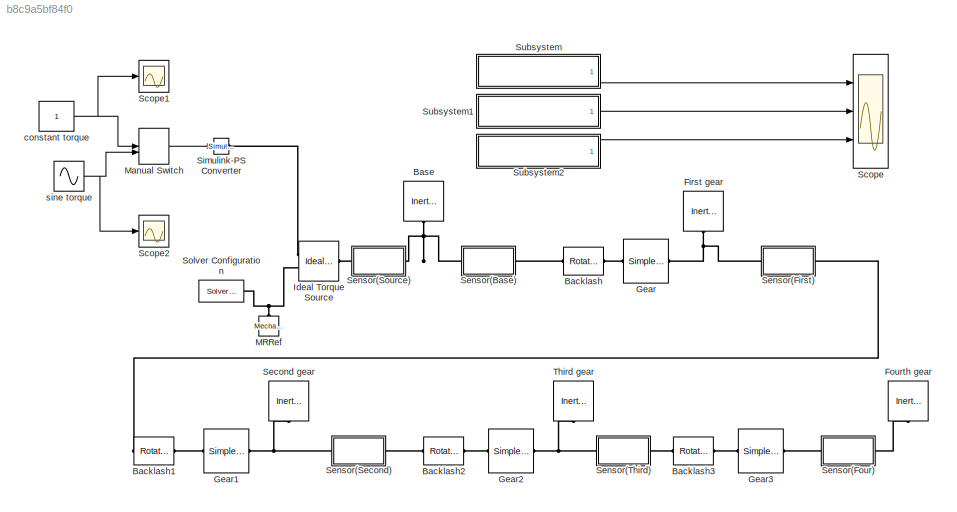
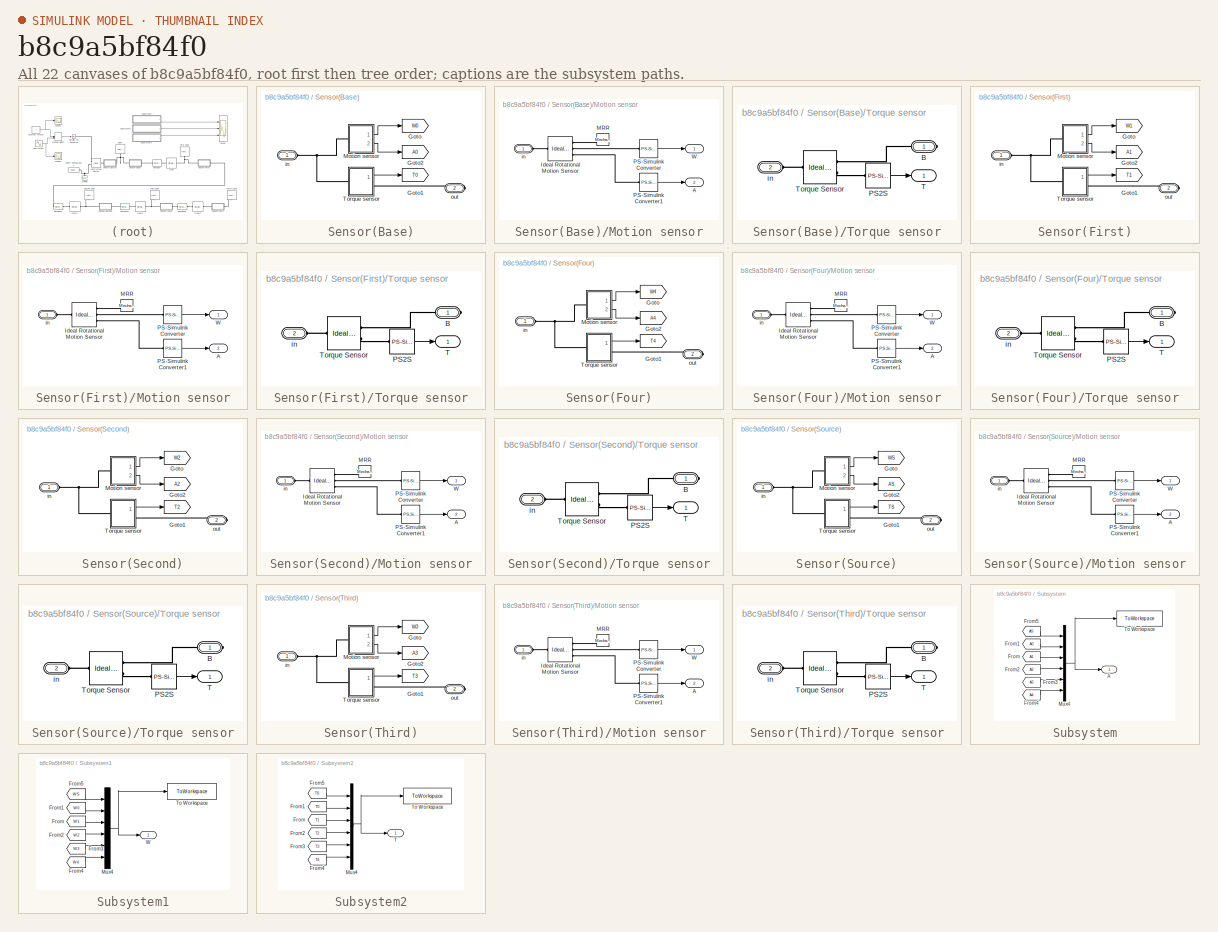
[diagram: thumbnail index - all 22 canvases of the model, root first then tree order]
MODEL slx_b8c9a5bf84f0
KIND model
CONFIG AbsTol = auto
CONFIG EnableMultiTasking = on
CONFIG FixedStep = auto
CONFIG MaxStep = 0.001
CONFIG MinStep = auto
CONFIG RelTol = 1e-3
CONFIG SampleTimeConstraint = Unconstrained
CONFIG Solver = ode15s
CONFIG SolverName = ode15s
CONFIG StartTime = 0.0
CONFIG StopFcn = GA_plot
CONFIG StopTime = 1
BLOCK [Reference] Backlash  REF=fl_lib/Mechanical/Rotational Elements/Rotational Hard Stop
  Ports = [0, 0, 0, 0, 0, 1, 1]
  SourceBlock = fl_lib/Mechanical/Rotational Elements/Rotational Hard Stop
  SourceProductBaseCode = SS
  SourceProductName = Simscape
  SourceType = Rotational Hard Stop
BLOCK [Reference] Backlash1  REF=fl_lib/Mechanical/Rotational Elements/Rotational Hard Stop
  Ports = [0, 0, 0, 0, 0, 1, 1]
  SourceBlock = fl_lib/Mechanical/Rotational Elements/Rotational Hard Stop
  SourceProductBaseCode = SS
  SourceProductName = Simscape
  SourceType = Rotational Hard Stop
BLOCK [Reference] Backlash2  REF=fl_lib/Mechanical/Rotational Elements/Rotational Hard Stop
  Ports = [0, 0, 0, 0, 0, 1, 1]
  SourceBlock = fl_lib/Mechanical/Rotational Elements/Rotational Hard Stop
  SourceProductBaseCode = SS
  SourceProductName = Simscape
  SourceType = Rotational Hard Stop
BLOCK [Reference] Backlash3  REF=fl_lib/Mechanical/Rotational Elements/Rotational Hard Stop
  Ports = [0, 0, 0, 0, 0, 1, 1]
  SourceBlock = fl_lib/Mechanical/Rotational Elements/Rotational Hard Stop
  SourceProductBaseCode = SS
  SourceProductName = Simscape
  SourceType = Rotational Hard Stop
BLOCK [Reference] Base  REF=fl_lib/Mechanical/Rotational Elements/Inertia
  Ports = [0, 0, 0, 0, 0, 1]
  SourceBlock = fl_lib/Mechanical/Rotational Elements/Inertia
  SourceProductBaseCode = SS
  SourceProductName = Simscape
  SourceType = Inertia
BLOCK [Reference] First gear  REF=fl_lib/Mechanical/Rotational Elements/Inertia
  Ports = [0, 0, 0, 0, 0, 1]
  SourceBlock = fl_lib/Mechanical/Rotational Elements/Inertia
  SourceProductBaseCode = SS
  SourceProductName = Simscape
  SourceType = Inertia
BLOCK [Reference] Fourth gear  REF=fl_lib/Mechanical/Rotational Elements/Inertia
  Ports = [0, 0, 0, 0, 0, 1]
  SourceBlock = fl_lib/Mechanical/Rotational Elements/Inertia
  SourceProductBaseCode = SS
  SourceProductName = Simscape
  SourceType = Inertia
BLOCK [Reference] Gear  REF=sdl_lib/Gears/Simple Gear
  Ports = [0, 0, 0, 0, 0, 1, 1]
  SourceBlock = sdl_lib/Gears/Simple Gear
  SourceProductBaseCode = LD
  SourceProductName = Simscape Driveline
  SourceType = Simple Gear
BLOCK [Reference] Gear1  REF=sdl_lib/Gears/Simple Gear
  Ports = [0, 0, 0, 0, 0, 1, 1]
  SourceBlock = sdl_lib/Gears/Simple Gear
  SourceProductBaseCode = LD
  SourceProductName = Simscape Driveline
  SourceType = Simple Gear
BLOCK [Reference] Gear2  REF=sdl_lib/Gears/Simple Gear
  Ports = [0, 0, 0, 0, 0, 1, 1]
  SourceBlock = sdl_lib/Gears/Simple Gear
  SourceProductBaseCode = LD
  SourceProductName = Simscape Driveline
  SourceType = Simple Gear
BLOCK [Reference] Gear3  REF=sdl_lib/Gears/Simple Gear
  Ports = [0, 0, 0, 0, 0, 1, 1]
  SourceBlock = sdl_lib/Gears/Simple Gear
  SourceProductBaseCode = LD
  SourceProductName = Simscape Driveline
  SourceType = Simple Gear
BLOCK [Reference] Ideal Torque Source  REF=fl_lib/Mechanical/Mechanical Sources/Ideal Torque Source
  Ports = [0, 0, 0, 0, 0, 1, 2]
  SourceBlock = fl_lib/Mechanical/Mechanical Sources/Ideal Torque Source
  SourceProductBaseCode = SS
  SourceProductName = Simscape
  SourceType = Ideal Torque Source
BLOCK [Reference] MRRef  REF=fl_lib/Mechanical/Rotational Elements/Mechanical
Rotational Reference
  Ports = [0, 0, 0, 0, 0, 1]
  SourceBlock = fl_lib/Mechanical/Rotational Elements/Mechanical\nRotational Reference
  SourceProductBaseCode = SS
  SourceProductName = Simscape
  SourceType = Mechanical\nRotational Reference
BLOCK [ManualSwitch] Manual Switch
BLOCK [Scope] Scope
  Floating = off
  NumInputPorts = 3
  Ports = [3]
  ScopeSpecificationString = Simulink.scopes.TimeScopeBlockCfg('CurrentConfiguration', extmgr.ConfigurationSet(extmgr.Configuration('Core','General UI',true),extmgr.Configuration('Core','Source UI',true),extmgr.Configuration('Sources','WiredSimulink',true,'DataLoggingVariableName','ScopeData1','DataLoggingSaveFormat','StructureWithTime','DataLoggingMaxPoints','15000','DataLoggingDecimation','1','DataLoggingDecimateData',true)...<+4170ch>
BLOCK [Scope] Scope1
  Floating = off
  NumInputPorts = 1
  Ports = [1]
  ScopeSpecificationString = Simulink.scopes.TimeScopeBlockCfg('CurrentConfiguration', extmgr.ConfigurationSet(extmgr.Configuration('Core','General UI',true),extmgr.Configuration('Core','Source UI',true),extmgr.Configuration('Sources','WiredSimulink',true,'DataLoggingSaveFormat','StructureWithTime','DataLoggingMaxPoints','15000','DataLoggingDecimation','1','DataLoggingDecimateData',true,'DataLoggingVariableName','ScopeData1')...<+2110ch>
BLOCK [Scope] Scope2
  Floating = off
  NumInputPorts = 1
  Ports = [1]
  ScopeSpecificationString = Simulink.scopes.TimeScopeBlockCfg('CurrentConfiguration', extmgr.ConfigurationSet(extmgr.Configuration('Core','General UI',true),extmgr.Configuration('Core','Source UI',true),extmgr.Configuration('Sources','WiredSimulink',true,'DataLoggingSaveFormat','StructureWithTime','DataLoggingMaxPoints','15000','DataLoggingDecimation','1','DataLoggingDecimateData',true,'DataLoggingVariableName','ScopeData2')...<+2098ch>
BLOCK [Reference] Second gear  REF=fl_lib/Mechanical/Rotational Elements/Inertia
  Ports = [0, 0, 0, 0, 0, 1]
  SourceBlock = fl_lib/Mechanical/Rotational Elements/Inertia
  SourceProductBaseCode = SS
  SourceProductName = Simscape
  SourceType = Inertia
BLOCK [SubSystem] Sensor(Base)
  Ports = [0, 0, 0, 0, 0, 1, 1]
  RequestExecContextInheritance = off
BLOCK [Goto] Sensor(Base)/Goto
  GotoTag = W0
  TagVisibility = global
BLOCK [Goto] Sensor(Base)/Goto1
  GotoTag = T0
  TagVisibility = global
BLOCK [Goto] Sensor(Base)/Goto2
  GotoTag = A0
  TagVisibility = global
BLOCK [SubSystem] Sensor(Base)/Motion sensor
  Ports = [0, 2, 0, 0, 0, 1]
  RequestExecContextInheritance = off
BLOCK [Outport] Sensor(Base)/Motion sensor/A
  IconDisplay = Port number
  Port = 2
  VectorParamsAs1DForOutWhenUnconnected = off
BLOCK [Reference] Sensor(Base)/Motion sensor/Ideal Rotational Motion Sensor  REF=fl_lib/Mechanical/Mechanical Sensors/Ideal Rotational
Motion Sensor
  Ports = [0, 0, 0, 0, 0, 1, 3]
  SourceBlock = fl_lib/Mechanical/Mechanical Sensors/Ideal Rotational\nMotion Sensor
  SourceProductBaseCode = SS
  SourceProductName = Simscape
  SourceType = Ideal Rotational\nMotion Sensor
BLOCK [Reference] Sensor(Base)/Motion sensor/MRR  REF=fl_lib/Mechanical/Rotational Elements/Mechanical
Rotational Reference
  Ports = [0, 0, 0, 0, 0, 1]
  SourceBlock = fl_lib/Mechanical/Rotational Elements/Mechanical\nRotational Reference
  SourceProductBaseCode = SS
  SourceProductName = Simscape
  SourceType = Mechanical\nRotational Reference
BLOCK [Reference] Sensor(Base)/Motion sensor/PS-Simulink Converter  REF=nesl_utility/PS-Simulink
Converter
  Ports = [0, 1, 0, 0, 0, 1]
  SourceBlock = nesl_utility/PS-Simulink\nConverter
  SourceProductBaseCode = SS
  SourceProductName = Simscape
  SourceType = PS-Simulink\nConverter
BLOCK [Reference] Sensor(Base)/Motion sensor/PS-Simulink Converter1  REF=nesl_utility/PS-Simulink
Converter
  Ports = [0, 1, 0, 0, 0, 1]
  SourceBlock = nesl_utility/PS-Simulink\nConverter
  SourceProductBaseCode = SS
  SourceProductName = Simscape
  SourceType = PS-Simulink\nConverter
BLOCK [Outport] Sensor(Base)/Motion sensor/W
  IconDisplay = Port number
  VectorParamsAs1DForOutWhenUnconnected = off
BLOCK [PMIOPort] Sensor(Base)/Motion sensor/in
  Side = Left
BLOCK [SubSystem] Sensor(Base)/Torque sensor
  Ports = [0, 1, 0, 0, 0, 1, 1]
  RequestExecContextInheritance = off
BLOCK [PMIOPort] Sensor(Base)/Torque sensor/B
  Side = Right
BLOCK [Reference] Sensor(Base)/Torque sensor/PS2S  REF=nesl_utility/PS-Simulink
Converter
  Ports = [0, 1, 0, 0, 0, 1]
  SourceBlock = nesl_utility/PS-Simulink\nConverter
  SourceProductBaseCode = SS
  SourceProductName = Simscape
  SourceType = PS-Simulink\nConverter
BLOCK [Outport] Sensor(Base)/Torque sensor/T
  IconDisplay = Port number
  VectorParamsAs1DForOutWhenUnconnected = off
BLOCK [Reference] Sensor(Base)/Torque sensor/Torque Sensor  REF=fl_lib/Mechanical/Mechanical Sensors/Ideal Torque Sensor
  Ports = [0, 0, 0, 0, 0, 1, 2]
  SourceBlock = fl_lib/Mechanical/Mechanical Sensors/Ideal Torque Sensor
  SourceProductBaseCode = SS
  SourceProductName = Simscape
  SourceType = Ideal Torque Sensor
BLOCK [PMIOPort] Sensor(Base)/Torque sensor/in
  Port = 2
  Side = Left
BLOCK [PMIOPort] Sensor(Base)/in
  Side = Left
BLOCK [PMIOPort] Sensor(Base)/out
  Port = 2
  Side = Right
BLOCK [SubSystem] Sensor(First)
  Ports = [0, 0, 0, 0, 0, 1, 1]
  RequestExecContextInheritance = off
BLOCK [Goto] Sensor(First)/Goto
  GotoTag = W1
  TagVisibility = global
BLOCK [Goto] Sensor(First)/Goto1
  GotoTag = T1
  TagVisibility = global
BLOCK [Goto] Sensor(First)/Goto2
  GotoTag = A1
  TagVisibility = global
BLOCK [SubSystem] Sensor(First)/Motion sensor
  Ports = [0, 2, 0, 0, 0, 1]
  RequestExecContextInheritance = off
BLOCK [Outport] Sensor(First)/Motion sensor/A
  IconDisplay = Port number
  Port = 2
  VectorParamsAs1DForOutWhenUnconnected = off
BLOCK [Reference] Sensor(First)/Motion sensor/Ideal Rotational Motion Sensor  REF=fl_lib/Mechanical/Mechanical Sensors/Ideal Rotational
Motion Sensor
  Ports = [0, 0, 0, 0, 0, 1, 3]
  SourceBlock = fl_lib/Mechanical/Mechanical Sensors/Ideal Rotational\nMotion Sensor
  SourceProductBaseCode = SS
  SourceProductName = Simscape
  SourceType = Ideal Rotational\nMotion Sensor
BLOCK [Reference] Sensor(First)/Motion sensor/MRR  REF=fl_lib/Mechanical/Rotational Elements/Mechanical
Rotational Reference
  Ports = [0, 0, 0, 0, 0, 1]
  SourceBlock = fl_lib/Mechanical/Rotational Elements/Mechanical\nRotational Reference
  SourceProductBaseCode = SS
  SourceProductName = Simscape
  SourceType = Mechanical\nRotational Reference
BLOCK [Reference] Sensor(First)/Motion sensor/PS-Simulink Converter  REF=nesl_utility/PS-Simulink
Converter
  Ports = [0, 1, 0, 0, 0, 1]
  SourceBlock = nesl_utility/PS-Simulink\nConverter
  SourceProductBaseCode = SS
  SourceProductName = Simscape
  SourceType = PS-Simulink\nConverter
BLOCK [Reference] Sensor(First)/Motion sensor/PS-Simulink Converter1  REF=nesl_utility/PS-Simulink
Converter
  Ports = [0, 1, 0, 0, 0, 1]
  SourceBlock = nesl_utility/PS-Simulink\nConverter
  SourceProductBaseCode = SS
  SourceProductName = Simscape
  SourceType = PS-Simulink\nConverter
BLOCK [Outport] Sensor(First)/Motion sensor/W
  IconDisplay = Port number
  VectorParamsAs1DForOutWhenUnconnected = off
BLOCK [PMIOPort] Sensor(First)/Motion sensor/in
  Side = Left
BLOCK [SubSystem] Sensor(First)/Torque sensor
  Ports = [0, 1, 0, 0, 0, 1, 1]
  RequestExecContextInheritance = off
BLOCK [PMIOPort] Sensor(First)/Torque sensor/B
  Side = Right
BLOCK [Reference] Sensor(First)/Torque sensor/PS2S  REF=nesl_utility/PS-Simulink
Converter
  Ports = [0, 1, 0, 0, 0, 1]
  SourceBlock = nesl_utility/PS-Simulink\nConverter
  SourceProductBaseCode = SS
  SourceProductName = Simscape
  SourceType = PS-Simulink\nConverter
BLOCK [Outport] Sensor(First)/Torque sensor/T
  IconDisplay = Port number
  VectorParamsAs1DForOutWhenUnconnected = off
BLOCK [Reference] Sensor(First)/Torque sensor/Torque Sensor  REF=fl_lib/Mechanical/Mechanical Sensors/Ideal Torque Sensor
  Ports = [0, 0, 0, 0, 0, 1, 2]
  SourceBlock = fl_lib/Mechanical/Mechanical Sensors/Ideal Torque Sensor
  SourceProductBaseCode = SS
  SourceProductName = Simscape
  SourceType = Ideal Torque Sensor
BLOCK [PMIOPort] Sensor(First)/Torque sensor/in
  Port = 2
  Side = Left
BLOCK [PMIOPort] Sensor(First)/in
  Side = Left
BLOCK [PMIOPort] Sensor(First)/out
  Port = 2
  Side = Right
BLOCK [SubSystem] Sensor(Four)
  Ports = [0, 0, 0, 0, 0, 1, 1]
  RequestExecContextInheritance = off
BLOCK [Goto] Sensor(Four)/Goto
  GotoTag = W4
  TagVisibility = global
BLOCK [Goto] Sensor(Four)/Goto1
  GotoTag = T4
  TagVisibility = global
BLOCK [Goto] Sensor(Four)/Goto2
  GotoTag = A4
  TagVisibility = global
BLOCK [SubSystem] Sensor(Four)/Motion sensor
  Ports = [0, 2, 0, 0, 0, 1]
  RequestExecContextInheritance = off
BLOCK [Outport] Sensor(Four)/Motion sensor/A
  IconDisplay = Port number
  Port = 2
  VectorParamsAs1DForOutWhenUnconnected = off
BLOCK [Reference] Sensor(Four)/Motion sensor/Ideal Rotational Motion Sensor  REF=fl_lib/Mechanical/Mechanical Sensors/Ideal Rotational
Motion Sensor
  Ports = [0, 0, 0, 0, 0, 1, 3]
  SourceBlock = fl_lib/Mechanical/Mechanical Sensors/Ideal Rotational\nMotion Sensor
  SourceProductBaseCode = SS
  SourceProductName = Simscape
  SourceType = Ideal Rotational\nMotion Sensor
BLOCK [Reference] Sensor(Four)/Motion sensor/MRR  REF=fl_lib/Mechanical/Rotational Elements/Mechanical
Rotational Reference
  Ports = [0, 0, 0, 0, 0, 1]
  SourceBlock = fl_lib/Mechanical/Rotational Elements/Mechanical\nRotational Reference
  SourceProductBaseCode = SS
  SourceProductName = Simscape
  SourceType = Mechanical\nRotational Reference
BLOCK [Reference] Sensor(Four)/Motion sensor/PS-Simulink Converter  REF=nesl_utility/PS-Simulink
Converter
  Ports = [0, 1, 0, 0, 0, 1]
  SourceBlock = nesl_utility/PS-Simulink\nConverter
  SourceProductBaseCode = SS
  SourceProductName = Simscape
  SourceType = PS-Simulink\nConverter
BLOCK [Reference] Sensor(Four)/Motion sensor/PS-Simulink Converter1  REF=nesl_utility/PS-Simulink
Converter
  Ports = [0, 1, 0, 0, 0, 1]
  SourceBlock = nesl_utility/PS-Simulink\nConverter
  SourceProductBaseCode = SS
  SourceProductName = Simscape
  SourceType = PS-Simulink\nConverter
BLOCK [Outport] Sensor(Four)/Motion sensor/W
  IconDisplay = Port number
  VectorParamsAs1DForOutWhenUnconnected = off
BLOCK [PMIOPort] Sensor(Four)/Motion sensor/in
  Side = Left
BLOCK [SubSystem] Sensor(Four)/Torque sensor
  Ports = [0, 1, 0, 0, 0, 1, 1]
  RequestExecContextInheritance = off
BLOCK [PMIOPort] Sensor(Four)/Torque sensor/B
  Side = Right
BLOCK [Reference] Sensor(Four)/Torque sensor/PS2S  REF=nesl_utility/PS-Simulink
Converter
  Ports = [0, 1, 0, 0, 0, 1]
  SourceBlock = nesl_utility/PS-Simulink\nConverter
  SourceProductBaseCode = SS
  SourceProductName = Simscape
  SourceType = PS-Simulink\nConverter
BLOCK [Outport] Sensor(Four)/Torque sensor/T
  IconDisplay = Port number
  VectorParamsAs1DForOutWhenUnconnected = off
BLOCK [Reference] Sensor(Four)/Torque sensor/Torque Sensor  REF=fl_lib/Mechanical/Mechanical Sensors/Ideal Torque Sensor
  Ports = [0, 0, 0, 0, 0, 1, 2]
  SourceBlock = fl_lib/Mechanical/Mechanical Sensors/Ideal Torque Sensor
  SourceProductBaseCode = SS
  SourceProductName = Simscape
  SourceType = Ideal Torque Sensor
BLOCK [PMIOPort] Sensor(Four)/Torque sensor/in
  Port = 2
  Side = Left
BLOCK [PMIOPort] Sensor(Four)/in
  Side = Left
BLOCK [PMIOPort] Sensor(Four)/out
  Port = 2
  Side = Right
BLOCK [SubSystem] Sensor(Second)
  Ports = [0, 0, 0, 0, 0, 1, 1]
  RequestExecContextInheritance = off
BLOCK [Goto] Sensor(Second)/Goto
  GotoTag = W2
  TagVisibility = global
BLOCK [Goto] Sensor(Second)/Goto1
  GotoTag = T2
  TagVisibility = global
BLOCK [Goto] Sensor(Second)/Goto2
  GotoTag = A2
  TagVisibility = global
BLOCK [SubSystem] Sensor(Second)/Motion sensor
  Ports = [0, 2, 0, 0, 0, 1]
  RequestExecContextInheritance = off
BLOCK [Outport] Sensor(Second)/Motion sensor/A
  IconDisplay = Port number
  Port = 2
  VectorParamsAs1DForOutWhenUnconnected = off
BLOCK [Reference] Sensor(Second)/Motion sensor/Ideal Rotational Motion Sensor  REF=fl_lib/Mechanical/Mechanical Sensors/Ideal Rotational
Motion Sensor
  Ports = [0, 0, 0, 0, 0, 1, 3]
  SourceBlock = fl_lib/Mechanical/Mechanical Sensors/Ideal Rotational\nMotion Sensor
  SourceProductBaseCode = SS
  SourceProductName = Simscape
  SourceType = Ideal Rotational\nMotion Sensor
BLOCK [Reference] Sensor(Second)/Motion sensor/MRR  REF=fl_lib/Mechanical/Rotational Elements/Mechanical
Rotational Reference
  Ports = [0, 0, 0, 0, 0, 1]
  SourceBlock = fl_lib/Mechanical/Rotational Elements/Mechanical\nRotational Reference
  SourceProductBaseCode = SS
  SourceProductName = Simscape
  SourceType = Mechanical\nRotational Reference
BLOCK [Reference] Sensor(Second)/Motion sensor/PS-Simulink Converter  REF=nesl_utility/PS-Simulink
Converter
  Ports = [0, 1, 0, 0, 0, 1]
  SourceBlock = nesl_utility/PS-Simulink\nConverter
  SourceProductBaseCode = SS
  SourceProductName = Simscape
  SourceType = PS-Simulink\nConverter
BLOCK [Reference] Sensor(Second)/Motion sensor/PS-Simulink Converter1  REF=nesl_utility/PS-Simulink
Converter
  Ports = [0, 1, 0, 0, 0, 1]
  SourceBlock = nesl_utility/PS-Simulink\nConverter
  SourceProductBaseCode = SS
  SourceProductName = Simscape
  SourceType = PS-Simulink\nConverter
BLOCK [Outport] Sensor(Second)/Motion sensor/W
  IconDisplay = Port number
  VectorParamsAs1DForOutWhenUnconnected = off
BLOCK [PMIOPort] Sensor(Second)/Motion sensor/in
  Side = Left
BLOCK [SubSystem] Sensor(Second)/Torque sensor
  Ports = [0, 1, 0, 0, 0, 1, 1]
  RequestExecContextInheritance = off
BLOCK [PMIOPort] Sensor(Second)/Torque sensor/B
  Side = Right
BLOCK [Reference] Sensor(Second)/Torque sensor/PS2S  REF=nesl_utility/PS-Simulink
Converter
  Ports = [0, 1, 0, 0, 0, 1]
  SourceBlock = nesl_utility/PS-Simulink\nConverter
  SourceProductBaseCode = SS
  SourceProductName = Simscape
  SourceType = PS-Simulink\nConverter
BLOCK [Outport] Sensor(Second)/Torque sensor/T
  IconDisplay = Port number
  VectorParamsAs1DForOutWhenUnconnected = off
BLOCK [Reference] Sensor(Second)/Torque sensor/Torque Sensor  REF=fl_lib/Mechanical/Mechanical Sensors/Ideal Torque Sensor
  Ports = [0, 0, 0, 0, 0, 1, 2]
  SourceBlock = fl_lib/Mechanical/Mechanical Sensors/Ideal Torque Sensor
  SourceProductBaseCode = SS
  SourceProductName = Simscape
  SourceType = Ideal Torque Sensor
BLOCK [PMIOPort] Sensor(Second)/Torque sensor/in
  Port = 2
  Side = Left
BLOCK [PMIOPort] Sensor(Second)/in
  Side = Left
BLOCK [PMIOPort] Sensor(Second)/out
  Port = 2
  Side = Right
BLOCK [SubSystem] Sensor(Source)
  Ports = [0, 0, 0, 0, 0, 1, 1]
  RequestExecContextInheritance = off
BLOCK [Goto] Sensor(Source)/Goto
  GotoTag = WS
  TagVisibility = global
BLOCK [Goto] Sensor(Source)/Goto1
  GotoTag = TS
  TagVisibility = global
BLOCK [Goto] Sensor(Source)/Goto2
  GotoTag = AS
  TagVisibility = global
BLOCK [SubSystem] Sensor(Source)/Motion sensor
  Ports = [0, 2, 0, 0, 0, 1]
  RequestExecContextInheritance = off
BLOCK [Outport] Sensor(Source)/Motion sensor/A
  IconDisplay = Port number
  Port = 2
  VectorParamsAs1DForOutWhenUnconnected = off
BLOCK [Reference] Sensor(Source)/Motion sensor/Ideal Rotational Motion Sensor  REF=fl_lib/Mechanical/Mechanical Sensors/Ideal Rotational
Motion Sensor
  Ports = [0, 0, 0, 0, 0, 1, 3]
  SourceBlock = fl_lib/Mechanical/Mechanical Sensors/Ideal Rotational\nMotion Sensor
  SourceProductBaseCode = SS
  SourceProductName = Simscape
  SourceType = Ideal Rotational\nMotion Sensor
BLOCK [Reference] Sensor(Source)/Motion sensor/MRR  REF=fl_lib/Mechanical/Rotational Elements/Mechanical
Rotational Reference
  Ports = [0, 0, 0, 0, 0, 1]
  SourceBlock = fl_lib/Mechanical/Rotational Elements/Mechanical\nRotational Reference
  SourceProductBaseCode = SS
  SourceProductName = Simscape
  SourceType = Mechanical\nRotational Reference
BLOCK [Reference] Sensor(Source)/Motion sensor/PS-Simulink Converter  REF=nesl_utility/PS-Simulink
Converter
  Ports = [0, 1, 0, 0, 0, 1]
  SourceBlock = nesl_utility/PS-Simulink\nConverter
  SourceProductBaseCode = SS
  SourceProductName = Simscape
  SourceType = PS-Simulink\nConverter
BLOCK [Reference] Sensor(Source)/Motion sensor/PS-Simulink Converter1  REF=nesl_utility/PS-Simulink
Converter
  Ports = [0, 1, 0, 0, 0, 1]
  SourceBlock = nesl_utility/PS-Simulink\nConverter
  SourceProductBaseCode = SS
  SourceProductName = Simscape
  SourceType = PS-Simulink\nConverter
BLOCK [Outport] Sensor(Source)/Motion sensor/W
  IconDisplay = Port number
  VectorParamsAs1DForOutWhenUnconnected = off
BLOCK [PMIOPort] Sensor(Source)/Motion sensor/in
  Side = Left
BLOCK [SubSystem] Sensor(Source)/Torque sensor
  Ports = [0, 1, 0, 0, 0, 1, 1]
  RequestExecContextInheritance = off
BLOCK [PMIOPort] Sensor(Source)/Torque sensor/B
  Side = Right
BLOCK [Reference] Sensor(Source)/Torque sensor/PS2S  REF=nesl_utility/PS-Simulink
Converter
  Ports = [0, 1, 0, 0, 0, 1]
  SourceBlock = nesl_utility/PS-Simulink\nConverter
  SourceProductBaseCode = SS
  SourceProductName = Simscape
  SourceType = PS-Simulink\nConverter
BLOCK [Outport] Sensor(Source)/Torque sensor/T
  IconDisplay = Port number
  VectorParamsAs1DForOutWhenUnconnected = off
BLOCK [Reference] Sensor(Source)/Torque sensor/Torque Sensor  REF=fl_lib/Mechanical/Mechanical Sensors/Ideal Torque Sensor
  Ports = [0, 0, 0, 0, 0, 1, 2]
  SourceBlock = fl_lib/Mechanical/Mechanical Sensors/Ideal Torque Sensor
  SourceProductBaseCode = SS
  SourceProductName = Simscape
  SourceType = Ideal Torque Sensor
BLOCK [PMIOPort] Sensor(Source)/Torque sensor/in
  Port = 2
  Side = Left
BLOCK [PMIOPort] Sensor(Source)/in
  Side = Left
BLOCK [PMIOPort] Sensor(Source)/out
  Port = 2
  Side = Right
BLOCK [SubSystem] Sensor(Third)
  Ports = [0, 0, 0, 0, 0, 1, 1]
  RequestExecContextInheritance = off
BLOCK [Goto] Sensor(Third)/Goto
  GotoTag = W3
  TagVisibility = global
BLOCK [Goto] Sensor(Third)/Goto1
  GotoTag = T3
  TagVisibility = global
BLOCK [Goto] Sensor(Third)/Goto2
  GotoTag = A3
  TagVisibility = global
BLOCK [SubSystem] Sensor(Third)/Motion sensor
  Ports = [0, 2, 0, 0, 0, 1]
  RequestExecContextInheritance = off
BLOCK [Outport] Sensor(Third)/Motion sensor/A
  IconDisplay = Port number
  Port = 2
  VectorParamsAs1DForOutWhenUnconnected = off
BLOCK [Reference] Sensor(Third)/Motion sensor/Ideal Rotational Motion Sensor  REF=fl_lib/Mechanical/Mechanical Sensors/Ideal Rotational
Motion Sensor
  Ports = [0, 0, 0, 0, 0, 1, 3]
  SourceBlock = fl_lib/Mechanical/Mechanical Sensors/Ideal Rotational\nMotion Sensor
  SourceProductBaseCode = SS
  SourceProductName = Simscape
  SourceType = Ideal Rotational\nMotion Sensor
BLOCK [Reference] Sensor(Third)/Motion sensor/MRR  REF=fl_lib/Mechanical/Rotational Elements/Mechanical
Rotational Reference
  Ports = [0, 0, 0, 0, 0, 1]
  SourceBlock = fl_lib/Mechanical/Rotational Elements/Mechanical\nRotational Reference
  SourceProductBaseCode = SS
  SourceProductName = Simscape
  SourceType = Mechanical\nRotational Reference
BLOCK [Reference] Sensor(Third)/Motion sensor/PS-Simulink Converter  REF=nesl_utility/PS-Simulink
Converter
  Ports = [0, 1, 0, 0, 0, 1]
  SourceBlock = nesl_utility/PS-Simulink\nConverter
  SourceProductBaseCode = SS
  SourceProductName = Simscape
  SourceType = PS-Simulink\nConverter
BLOCK [Reference] Sensor(Third)/Motion sensor/PS-Simulink Converter1  REF=nesl_utility/PS-Simulink
Converter
  Ports = [0, 1, 0, 0, 0, 1]
  SourceBlock = nesl_utility/PS-Simulink\nConverter
  SourceProductBaseCode = SS
  SourceProductName = Simscape
  SourceType = PS-Simulink\nConverter
BLOCK [Outport] Sensor(Third)/Motion sensor/W
  IconDisplay = Port number
  VectorParamsAs1DForOutWhenUnconnected = off
BLOCK [PMIOPort] Sensor(Third)/Motion sensor/in
  Side = Left
BLOCK [SubSystem] Sensor(Third)/Torque sensor
  Ports = [0, 1, 0, 0, 0, 1, 1]
  RequestExecContextInheritance = off
BLOCK [PMIOPort] Sensor(Third)/Torque sensor/B
  Side = Right
BLOCK [Reference] Sensor(Third)/Torque sensor/PS2S  REF=nesl_utility/PS-Simulink
Converter
  Ports = [0, 1, 0, 0, 0, 1]
  SourceBlock = nesl_utility/PS-Simulink\nConverter
  SourceProductBaseCode = SS
  SourceProductName = Simscape
  SourceType = PS-Simulink\nConverter
BLOCK [Outport] Sensor(Third)/Torque sensor/T
  IconDisplay = Port number
  VectorParamsAs1DForOutWhenUnconnected = off
BLOCK [Reference] Sensor(Third)/Torque sensor/Torque Sensor  REF=fl_lib/Mechanical/Mechanical Sensors/Ideal Torque Sensor
  Ports = [0, 0, 0, 0, 0, 1, 2]
  SourceBlock = fl_lib/Mechanical/Mechanical Sensors/Ideal Torque Sensor
  SourceProductBaseCode = SS
  SourceProductName = Simscape
  SourceType = Ideal Torque Sensor
BLOCK [PMIOPort] Sensor(Third)/Torque sensor/in
  Port = 2
  Side = Left
BLOCK [PMIOPort] Sensor(Third)/in
  Side = Left
BLOCK [PMIOPort] Sensor(Third)/out
  Port = 2
  Side = Right
BLOCK [Reference] Simulink-PS Converter  REF=nesl_utility/Simulink-PS
Converter
  Ports = [1, 0, 0, 0, 0, 0, 1]
  SourceBlock = nesl_utility/Simulink-PS\nConverter
  SourceProductBaseCode = SS
  SourceProductName = Simscape
  SourceType = Simulink-PS\nConverter
BLOCK [Reference] Solver Configuration  REF=nesl_utility/Solver
Configuration
  Ports = [0, 0, 0, 0, 0, 0, 1]
  SourceBlock = nesl_utility/Solver\nConfiguration
  SourceProductBaseCode = SS
  SourceProductName = Simscape
  SourceType = Solver\nConfiguration
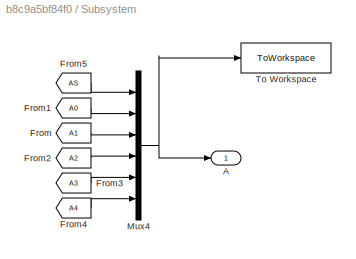
BLOCK [SubSystem] Subsystem
  Ports = [0, 1]
  RequestExecContextInheritance = off
BLOCK [Outport] Subsystem/A
  IconDisplay = Port number
BLOCK [From] Subsystem/From
  GotoTag = A1
  TagVisibility = global
BLOCK [From] Subsystem/From1
  GotoTag = A0
  TagVisibility = global
BLOCK [From] Subsystem/From2
  GotoTag = A2
  TagVisibility = global
BLOCK [From] Subsystem/From3
  GotoTag = A3
  TagVisibility = global
BLOCK [From] Subsystem/From4
  GotoTag = A4
  TagVisibility = global
BLOCK [From] Subsystem/From5
  GotoTag = AS
  TagVisibility = global
BLOCK [Mux] Subsystem/Mux4
  DisplayOption = bar
  Inputs = 6
  Ports = [6, 1]
BLOCK [ToWorkspace] Subsystem/To Workspace
  FixptAsFi = on
  MaxDataPoints = inf
  Ports = [1]
  SampleTime = -1
  SaveFormat = Timeseries
  VariableName = A
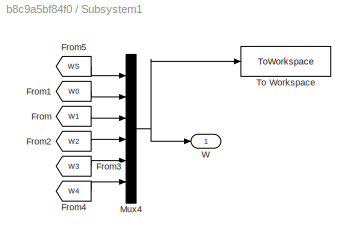
BLOCK [SubSystem] Subsystem1
  Ports = [0, 1]
  RequestExecContextInheritance = off
BLOCK [From] Subsystem1/From
  GotoTag = W1
  TagVisibility = global
BLOCK [From] Subsystem1/From1
  GotoTag = W0
  TagVisibility = global
BLOCK [From] Subsystem1/From2
  GotoTag = W2
  TagVisibility = global
BLOCK [From] Subsystem1/From3
  GotoTag = W3
  TagVisibility = global
BLOCK [From] Subsystem1/From4
  GotoTag = W4
  TagVisibility = global
BLOCK [From] Subsystem1/From5
  GotoTag = WS
  TagVisibility = global
BLOCK [Mux] Subsystem1/Mux4
  DisplayOption = bar
  Inputs = 6
  Ports = [6, 1]
BLOCK [ToWorkspace] Subsystem1/To Workspace
  FixptAsFi = on
  MaxDataPoints = inf
  Ports = [1]
  SampleTime = -1
  SaveFormat = Timeseries
  VariableName = W
BLOCK [Outport] Subsystem1/W
  IconDisplay = Port number
BLOCK [SubSystem] Subsystem2
  Ports = [0, 1]
  RequestExecContextInheritance = off
BLOCK [From] Subsystem2/From
  GotoTag = T1
  TagVisibility = global
BLOCK [From] Subsystem2/From1
  GotoTag = T0
  TagVisibility = global
BLOCK [From] Subsystem2/From2
  GotoTag = T2
  TagVisibility = global
BLOCK [From] Subsystem2/From3
  GotoTag = T3
  TagVisibility = global
BLOCK [From] Subsystem2/From4
  GotoTag = T4
  TagVisibility = global
BLOCK [From] Subsystem2/From5
  GotoTag = TS
  TagVisibility = global
BLOCK [Mux] Subsystem2/Mux4
  DisplayOption = bar
  Inputs = 6
  Ports = [6, 1]
BLOCK [Outport] Subsystem2/T
  IconDisplay = Port number
BLOCK [ToWorkspace] Subsystem2/To Workspace
  FixptAsFi = on
  MaxDataPoints = inf
  Ports = [1]
  SampleTime = -1
  SaveFormat = Timeseries
  VariableName = T
BLOCK [Reference] Third gear  REF=fl_lib/Mechanical/Rotational Elements/Inertia
  Ports = [0, 0, 0, 0, 0, 1]
  SourceBlock = fl_lib/Mechanical/Rotational Elements/Inertia
  SourceProductBaseCode = SS
  SourceProductName = Simscape
  SourceType = Inertia
BLOCK [Constant] constant torque
BLOCK [Sin] sine torque
  Amplitude = 100
  Frequency = 2*pi*1
  Phase = 1/2*pi
  Ports = [0, 1]
  SampleTime = 0
LINE Manual Switch:1 -> Simulink-PS Converter:1
LINE Sensor(Base)/Motion sensor/PS-Simulink Converter1:1 -> Sensor(Base)/Motion sensor/A:1
LINE Sensor(Base)/Motion sensor/PS-Simulink Converter:1 -> Sensor(Base)/Motion sensor/W:1
LINE Sensor(Base)/Motion sensor:1 -> Sensor(Base)/Goto:1
LINE Sensor(Base)/Motion sensor:2 -> Sensor(Base)/Goto2:1
LINE Sensor(Base)/Torque sensor/PS2S:1 -> Sensor(Base)/Torque sensor/T:1
LINE Sensor(Base)/Torque sensor:1 -> Sensor(Base)/Goto1:1
LINE Sensor(First)/Motion sensor/PS-Simulink Converter1:1 -> Sensor(First)/Motion sensor/A:1
LINE Sensor(First)/Motion sensor/PS-Simulink Converter:1 -> Sensor(First)/Motion sensor/W:1
LINE Sensor(First)/Motion sensor:1 -> Sensor(First)/Goto:1
LINE Sensor(First)/Motion sensor:2 -> Sensor(First)/Goto2:1
LINE Sensor(First)/Torque sensor/PS2S:1 -> Sensor(First)/Torque sensor/T:1
LINE Sensor(First)/Torque sensor:1 -> Sensor(First)/Goto1:1
LINE Sensor(Four)/Motion sensor/PS-Simulink Converter1:1 -> Sensor(Four)/Motion sensor/A:1
LINE Sensor(Four)/Motion sensor/PS-Simulink Converter:1 -> Sensor(Four)/Motion sensor/W:1
LINE Sensor(Four)/Motion sensor:1 -> Sensor(Four)/Goto:1
LINE Sensor(Four)/Motion sensor:2 -> Sensor(Four)/Goto2:1
LINE Sensor(Four)/Torque sensor/PS2S:1 -> Sensor(Four)/Torque sensor/T:1
LINE Sensor(Four)/Torque sensor:1 -> Sensor(Four)/Goto1:1
LINE Sensor(Second)/Motion sensor/PS-Simulink Converter1:1 -> Sensor(Second)/Motion sensor/A:1
LINE Sensor(Second)/Motion sensor/PS-Simulink Converter:1 -> Sensor(Second)/Motion sensor/W:1
LINE Sensor(Second)/Motion sensor:1 -> Sensor(Second)/Goto:1
LINE Sensor(Second)/Motion sensor:2 -> Sensor(Second)/Goto2:1
LINE Sensor(Second)/Torque sensor/PS2S:1 -> Sensor(Second)/Torque sensor/T:1
LINE Sensor(Second)/Torque sensor:1 -> Sensor(Second)/Goto1:1
LINE Sensor(Source)/Motion sensor/PS-Simulink Converter1:1 -> Sensor(Source)/Motion sensor/A:1
LINE Sensor(Source)/Motion sensor/PS-Simulink Converter:1 -> Sensor(Source)/Motion sensor/W:1
LINE Sensor(Source)/Motion sensor:1 -> Sensor(Source)/Goto:1
LINE Sensor(Source)/Motion sensor:2 -> Sensor(Source)/Goto2:1
LINE Sensor(Source)/Torque sensor/PS2S:1 -> Sensor(Source)/Torque sensor/T:1
LINE Sensor(Source)/Torque sensor:1 -> Sensor(Source)/Goto1:1
LINE Sensor(Third)/Motion sensor/PS-Simulink Converter1:1 -> Sensor(Third)/Motion sensor/A:1
LINE Sensor(Third)/Motion sensor/PS-Simulink Converter:1 -> Sensor(Third)/Motion sensor/W:1
LINE Sensor(Third)/Motion sensor:1 -> Sensor(Third)/Goto:1
LINE Sensor(Third)/Motion sensor:2 -> Sensor(Third)/Goto2:1
LINE Sensor(Third)/Torque sensor/PS2S:1 -> Sensor(Third)/Torque sensor/T:1
LINE Sensor(Third)/Torque sensor:1 -> Sensor(Third)/Goto1:1
LINE Subsystem/From1:1 -> Subsystem/Mux4:2
LINE Subsystem/From2:1 -> Subsystem/Mux4:4
LINE Subsystem/From3:1 -> Subsystem/Mux4:5
LINE Subsystem/From4:1 -> Subsystem/Mux4:6
LINE Subsystem/From5:1 -> Subsystem/Mux4:1
LINE Subsystem/From:1 -> Subsystem/Mux4:3
NET Subsystem/Mux4:1 -> Subsystem/A:1, Subsystem/To Workspace:1
LINE Subsystem1/From1:1 -> Subsystem1/Mux4:2
LINE Subsystem1/From2:1 -> Subsystem1/Mux4:4
LINE Subsystem1/From3:1 -> Subsystem1/Mux4:5
LINE Subsystem1/From4:1 -> Subsystem1/Mux4:6
LINE Subsystem1/From5:1 -> Subsystem1/Mux4:1
LINE Subsystem1/From:1 -> Subsystem1/Mux4:3
NET Subsystem1/Mux4:1 -> Subsystem1/To Workspace:1, Subsystem1/W:1
LINE Subsystem1:1 -> Scope:2
LINE Subsystem2/From1:1 -> Subsystem2/Mux4:2
LINE Subsystem2/From2:1 -> Subsystem2/Mux4:4
LINE Subsystem2/From3:1 -> Subsystem2/Mux4:5
LINE Subsystem2/From4:1 -> Subsystem2/Mux4:6
LINE Subsystem2/From5:1 -> Subsystem2/Mux4:1
LINE Subsystem2/From:1 -> Subsystem2/Mux4:3
NET Subsystem2/Mux4:1 -> Subsystem2/T:1, Subsystem2/To Workspace:1
LINE Subsystem2:1 -> Scope:3
LINE Subsystem:1 -> Scope:1
NET constant torque:1 -> Manual Switch:1, Scope1:1
NET sine torque:1 -> Manual Switch:2, Scope2:1
PLINE Backlash1:LConn1 -- Sensor(First):RConn1
PLINE Backlash1:RConn1 -- Gear1:LConn1
PLINE Backlash2:LConn1 -- Sensor(Second):RConn1
PLINE Backlash2:RConn1 -- Gear2:LConn1
PLINE Backlash3:LConn1 -- Sensor(Third):RConn1
PLINE Backlash3:RConn1 -- Gear3:LConn1
PLINE Backlash:LConn1 -- Sensor(Base):RConn1
PLINE Backlash:RConn1 -- Gear:LConn1
PNET net1: Base:LConn1 -- Sensor(Base):LConn1 -- Sensor(Source):RConn1
PNET net2: First gear:LConn1 -- Gear:RConn1 -- Sensor(First):LConn1
PLINE Fourth gear:LConn1 -- Sensor(Four):RConn1
PNET net3: Gear1:RConn1 -- Second gear:LConn1 -- Sensor(Second):LConn1
PNET net4: Gear2:RConn1 -- Sensor(Third):LConn1 -- Third gear:LConn1
PLINE Gear3:RConn1 -- Sensor(Four):LConn1
PLINE Ideal Torque Source:LConn1 -- Sensor(Source):LConn1
PLINE Ideal Torque Source:RConn1 -- Simulink-PS Converter:RConn1
PNET net5: Ideal Torque Source:RConn2 -- MRRef:LConn1 -- Solver Configuration:RConn1
PLINE Sensor(Base)/Motion sensor/Ideal Rotational Motion Sensor:LConn1 -- Sensor(Base)/Motion sensor/in:RConn1
PLINE Sensor(Base)/Motion sensor/Ideal Rotational Motion Sensor:RConn1 -- Sensor(Base)/Motion sensor/MRR:LConn1
PLINE Sensor(Base)/Motion sensor/Ideal Rotational Motion Sensor:RConn2 -- Sensor(Base)/Motion sensor/PS-Simulink Converter:LConn1
PLINE Sensor(Base)/Motion sensor/Ideal Rotational Motion Sensor:RConn3 -- Sensor(Base)/Motion sensor/PS-Simulink Converter1:LConn1
PNET net6: Sensor(Base)/Motion sensor:LConn1 -- Sensor(Base)/Torque sensor:LConn1 -- Sensor(Base)/in:RConn1
PLINE Sensor(Base)/Torque sensor/B:RConn1 -- Sensor(Base)/Torque sensor/Torque Sensor:RConn1
PLINE Sensor(Base)/Torque sensor/PS2S:LConn1 -- Sensor(Base)/Torque sensor/Torque Sensor:RConn2
PLINE Sensor(Base)/Torque sensor/Torque Sensor:LConn1 -- Sensor(Base)/Torque sensor/in:RConn1
PLINE Sensor(Base)/Torque sensor:RConn1 -- Sensor(Base)/out:RConn1
PLINE Sensor(First)/Motion sensor/Ideal Rotational Motion Sensor:LConn1 -- Sensor(First)/Motion sensor/in:RConn1
PLINE Sensor(First)/Motion sensor/Ideal Rotational Motion Sensor:RConn1 -- Sensor(First)/Motion sensor/MRR:LConn1
PLINE Sensor(First)/Motion sensor/Ideal Rotational Motion Sensor:RConn2 -- Sensor(First)/Motion sensor/PS-Simulink Converter:LConn1
PLINE Sensor(First)/Motion sensor/Ideal Rotational Motion Sensor:RConn3 -- Sensor(First)/Motion sensor/PS-Simulink Converter1:LConn1
PNET net7: Sensor(First)/Motion sensor:LConn1 -- Sensor(First)/Torque sensor:LConn1 -- Sensor(First)/in:RConn1
PLINE Sensor(First)/Torque sensor/B:RConn1 -- Sensor(First)/Torque sensor/Torque Sensor:RConn1
PLINE Sensor(First)/Torque sensor/PS2S:LConn1 -- Sensor(First)/Torque sensor/Torque Sensor:RConn2
PLINE Sensor(First)/Torque sensor/Torque Sensor:LConn1 -- Sensor(First)/Torque sensor/in:RConn1
PLINE Sensor(First)/Torque sensor:RConn1 -- Sensor(First)/out:RConn1
PLINE Sensor(Four)/Motion sensor/Ideal Rotational Motion Sensor:LConn1 -- Sensor(Four)/Motion sensor/in:RConn1
PLINE Sensor(Four)/Motion sensor/Ideal Rotational Motion Sensor:RConn1 -- Sensor(Four)/Motion sensor/MRR:LConn1
PLINE Sensor(Four)/Motion sensor/Ideal Rotational Motion Sensor:RConn2 -- Sensor(Four)/Motion sensor/PS-Simulink Converter:LConn1
PLINE Sensor(Four)/Motion sensor/Ideal Rotational Motion Sensor:RConn3 -- Sensor(Four)/Motion sensor/PS-Simulink Converter1:LConn1
PNET net8: Sensor(Four)/Motion sensor:LConn1 -- Sensor(Four)/Torque sensor:LConn1 -- Sensor(Four)/in:RConn1
PLINE Sensor(Four)/Torque sensor/B:RConn1 -- Sensor(Four)/Torque sensor/Torque Sensor:RConn1
PLINE Sensor(Four)/Torque sensor/PS2S:LConn1 -- Sensor(Four)/Torque sensor/Torque Sensor:RConn2
PLINE Sensor(Four)/Torque sensor/Torque Sensor:LConn1 -- Sensor(Four)/Torque sensor/in:RConn1
PLINE Sensor(Four)/Torque sensor:RConn1 -- Sensor(Four)/out:RConn1
PLINE Sensor(Second)/Motion sensor/Ideal Rotational Motion Sensor:LConn1 -- Sensor(Second)/Motion sensor/in:RConn1
PLINE Sensor(Second)/Motion sensor/Ideal Rotational Motion Sensor:RConn1 -- Sensor(Second)/Motion sensor/MRR:LConn1
PLINE Sensor(Second)/Motion sensor/Ideal Rotational Motion Sensor:RConn2 -- Sensor(Second)/Motion sensor/PS-Simulink Converter:LConn1
PLINE Sensor(Second)/Motion sensor/Ideal Rotational Motion Sensor:RConn3 -- Sensor(Second)/Motion sensor/PS-Simulink Converter1:LConn1
PNET net9: Sensor(Second)/Motion sensor:LConn1 -- Sensor(Second)/Torque sensor:LConn1 -- Sensor(Second)/in:RConn1
PLINE Sensor(Second)/Torque sensor/B:RConn1 -- Sensor(Second)/Torque sensor/Torque Sensor:RConn1
PLINE Sensor(Second)/Torque sensor/PS2S:LConn1 -- Sensor(Second)/Torque sensor/Torque Sensor:RConn2
PLINE Sensor(Second)/Torque sensor/Torque Sensor:LConn1 -- Sensor(Second)/Torque sensor/in:RConn1
PLINE Sensor(Second)/Torque sensor:RConn1 -- Sensor(Second)/out:RConn1
PLINE Sensor(Source)/Motion sensor/Ideal Rotational Motion Sensor:LConn1 -- Sensor(Source)/Motion sensor/in:RConn1
PLINE Sensor(Source)/Motion sensor/Ideal Rotational Motion Sensor:RConn1 -- Sensor(Source)/Motion sensor/MRR:LConn1
PLINE Sensor(Source)/Motion sensor/Ideal Rotational Motion Sensor:RConn2 -- Sensor(Source)/Motion sensor/PS-Simulink Converter:LConn1
PLINE Sensor(Source)/Motion sensor/Ideal Rotational Motion Sensor:RConn3 -- Sensor(Source)/Motion sensor/PS-Simulink Converter1:LConn1
PNET net10: Sensor(Source)/Motion sensor:LConn1 -- Sensor(Source)/Torque sensor:LConn1 -- Sensor(Source)/in:RConn1
PLINE Sensor(Source)/Torque sensor/B:RConn1 -- Sensor(Source)/Torque sensor/Torque Sensor:RConn1
PLINE Sensor(Source)/Torque sensor/PS2S:LConn1 -- Sensor(Source)/Torque sensor/Torque Sensor:RConn2
PLINE Sensor(Source)/Torque sensor/Torque Sensor:LConn1 -- Sensor(Source)/Torque sensor/in:RConn1
PLINE Sensor(Source)/Torque sensor:RConn1 -- Sensor(Source)/out:RConn1
PLINE Sensor(Third)/Motion sensor/Ideal Rotational Motion Sensor:LConn1 -- Sensor(Third)/Motion sensor/in:RConn1
PLINE Sensor(Third)/Motion sensor/Ideal Rotational Motion Sensor:RConn1 -- Sensor(Third)/Motion sensor/MRR:LConn1
PLINE Sensor(Third)/Motion sensor/Ideal Rotational Motion Sensor:RConn2 -- Sensor(Third)/Motion sensor/PS-Simulink Converter:LConn1
PLINE Sensor(Third)/Motion sensor/Ideal Rotational Motion Sensor:RConn3 -- Sensor(Third)/Motion sensor/PS-Simulink Converter1:LConn1
PNET net11: Sensor(Third)/Motion sensor:LConn1 -- Sensor(Third)/Torque sensor:LConn1 -- Sensor(Third)/in:RConn1
PLINE Sensor(Third)/Torque sensor/B:RConn1 -- Sensor(Third)/Torque sensor/Torque Sensor:RConn1
PLINE Sensor(Third)/Torque sensor/PS2S:LConn1 -- Sensor(Third)/Torque sensor/Torque Sensor:RConn2
PLINE Sensor(Third)/Torque sensor/Torque Sensor:LConn1 -- Sensor(Third)/Torque sensor/in:RConn1
PLINE Sensor(Third)/Torque sensor:RConn1 -- Sensor(Third)/out:RConn1
note: NET lines group one-source signal fan-out (src -> all destinations, sorted); 1:1 wires keep LINE; PNET lines group multi-terminal physical nets as a canonical sorted terminal list (undirected conserving connections); 2-terminal nets keep the pairwise PLINE form
